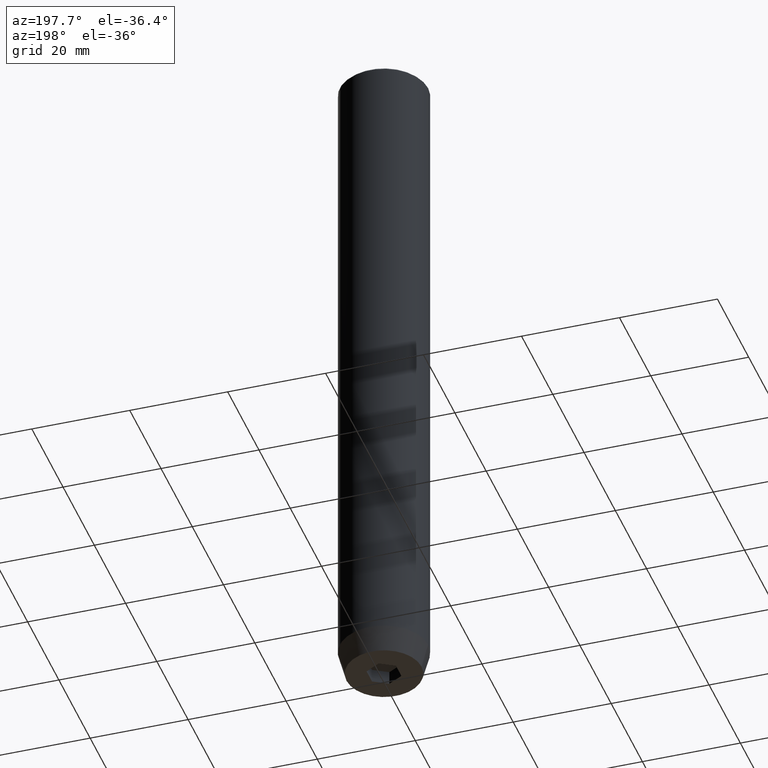
[diagram: clean part render]
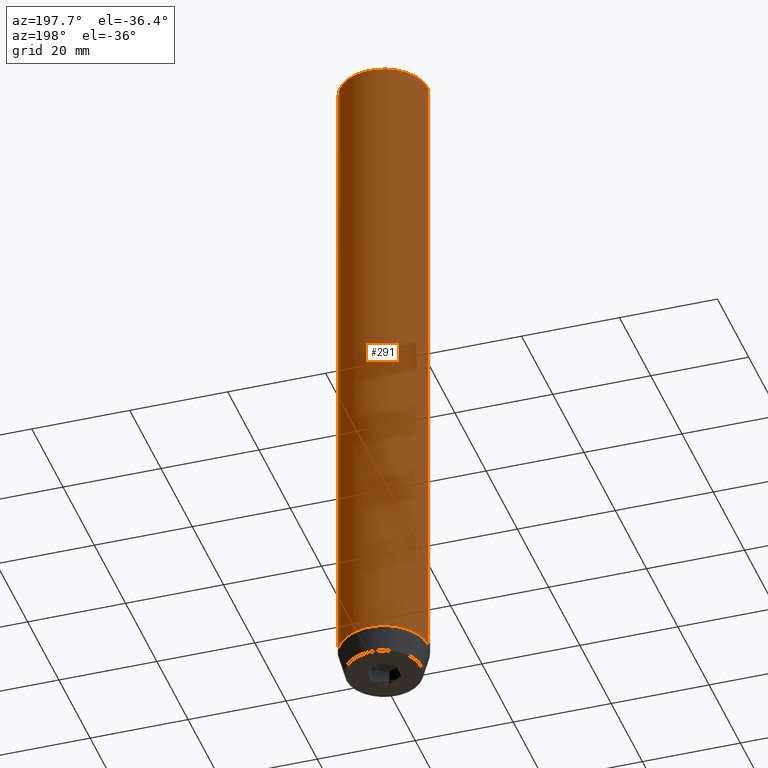
[diagram: same view with one face highlighted and labeled with its STEP entity id]
A machine part, auxiliary view. The second image highlights one B-rep face of the part: STEP entity #291.
In plain terms, the highlighted cylindrical surface (partial cylindrical patch) has radius 9 mm, axis along (-0, -0, 1).
Its self-contained STEP definition (entity closure, byte-faithful):
#9 = CIRCLE ( 'NONE', #83, 9.000000000000000000 ) ;
#45 = ORIENTED_EDGE ( 'NONE', *, *, #181, .T. ) ;
#51 = ORIENTED_EDGE ( 'NONE', *, *, #495, .F. ) ;
#83 = AXIS2_PLACEMENT_3D ( 'NONE', #394, #261, #307 ) ;
#99 = CARTESIAN_POINT ( 'NONE',  ( -9.000000000000000000, 1.102182119232617714E-15, -135.0000000000000000 ) ) ;
#102 = VECTOR ( 'NONE', #275, 1000.000000000000000 ) ;
#107 = FACE_OUTER_BOUND ( 'NONE', #126, .T. ) ;
#117 = LINE ( 'NONE', #159, #555 ) ;
#126 = EDGE_LOOP ( 'NONE', ( #157, #45, #337, #51 ) ) ;
#137 = LINE ( 'NONE', #456, #102 ) ;
#151 = CARTESIAN_POINT ( 'NONE',  ( 0.000000000000000000, 0.000000000000000000, -135.0000000000000000 ) ) ;
#152 = VERTEX_POINT ( 'NONE', #269 ) ;
#157 = ORIENTED_EDGE ( 'NONE', *, *, #282, .T. ) ;
#159 = CARTESIAN_POINT ( 'NONE',  ( 9.000000000000000000, 0.000000000000000000, 0.000000000000000000 ) ) ;
#181 = EDGE_CURVE ( 'NONE', #270, #546, #137, .T. ) ;
#229 = VERTEX_POINT ( 'NONE', #278 ) ;
#245 = CYLINDRICAL_SURFACE ( 'NONE', #465, 9.000000000000000000 ) ;
#261 = DIRECTION ( 'NONE',  ( 0.000000000000000000, 0.000000000000000000, -1.000000000000000000 ) ) ;
#269 = CARTESIAN_POINT ( 'NONE',  ( 9.000000000000000000, 0.000000000000000000, -0.4999999999999813483 ) ) ;
#270 = VERTEX_POINT ( 'NONE', #99 ) ;
#275 = DIRECTION ( 'NONE',  ( -0.000000000000000000, -0.000000000000000000, 1.000000000000000000 ) ) ;
#278 = CARTESIAN_POINT ( 'NONE',  ( 9.000000000000000000, 0.000000000000000000, -135.0000000000000000 ) ) ;
#282 = EDGE_CURVE ( 'NONE', #229, #270, #573, .T. ) ;
#291 = ADVANCED_FACE ( 'NONE', ( #107 ), #245, .T. ) ;
#303 = DIRECTION ( 'NONE',  ( -0.000000000000000000, -0.000000000000000000, 1.000000000000000000 ) ) ;
#307 = DIRECTION ( 'NONE',  ( 1.000000000000000000, 0.000000000000000000, 0.000000000000000000 ) ) ;
#332 = DIRECTION ( 'NONE',  ( -0.000000000000000000, -0.000000000000000000, 1.000000000000000000 ) ) ;
#337 = ORIENTED_EDGE ( 'NONE', *, *, #541, .T. ) ;
#389 = DIRECTION ( 'NONE',  ( -0.000000000000000000, -0.000000000000000000, 1.000000000000000000 ) ) ;
#394 = CARTESIAN_POINT ( 'NONE',  ( 0.000000000000000000, 0.000000000000000000, -0.4999999999999813483 ) ) ;
#432 = CARTESIAN_POINT ( 'NONE',  ( 0.000000000000000000, 0.000000000000000000, 0.000000000000000000 ) ) ;
#435 = DIRECTION ( 'NONE',  ( 1.000000000000000000, 0.000000000000000000, 0.000000000000000000 ) ) ;
#437 = CARTESIAN_POINT ( 'NONE',  ( -9.000000000000000000, 1.102182119232617714E-15, -0.4999999999999813483 ) ) ;
#456 = CARTESIAN_POINT ( 'NONE',  ( -9.000000000000000000, 1.102182119232617714E-15, 0.000000000000000000 ) ) ;
#465 = AXIS2_PLACEMENT_3D ( 'NONE', #432, #389, #557 ) ;
#495 = EDGE_CURVE ( 'NONE', #229, #152, #117, .T. ) ;
#541 = EDGE_CURVE ( 'NONE', #546, #152, #9, .T. ) ;
#546 = VERTEX_POINT ( 'NONE', #437 ) ;
#553 = AXIS2_PLACEMENT_3D ( 'NONE', #151, #332, #435 ) ;
#555 = VECTOR ( 'NONE', #303, 1000.000000000000000 ) ;
#557 = DIRECTION ( 'NONE',  ( 1.000000000000000000, 0.000000000000000000, 0.000000000000000000 ) ) ;
#573 = CIRCLE ( 'NONE', #553, 9.000000000000000000 ) ;